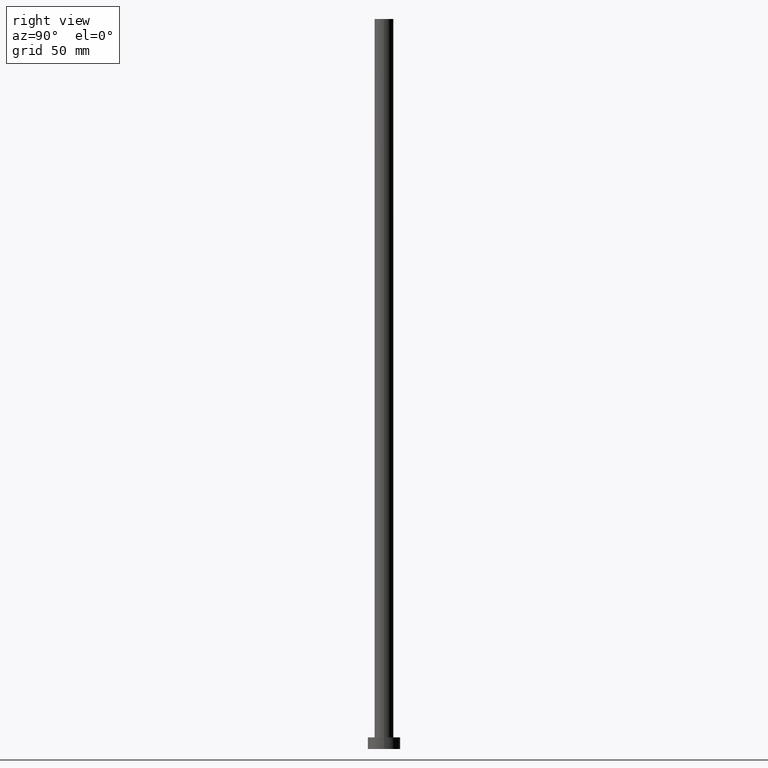
[diagram: clean part render]
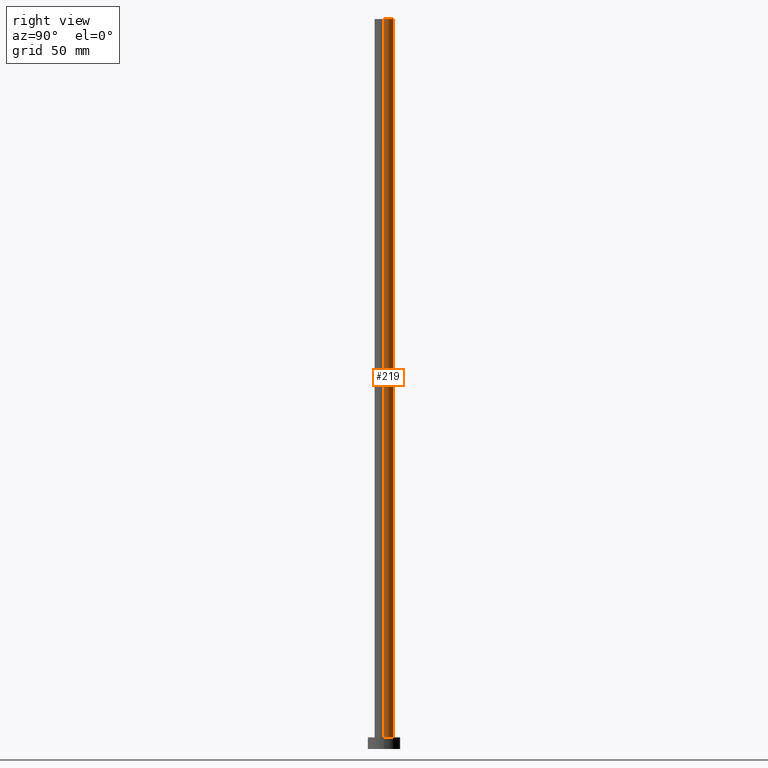
[diagram: same view with one face highlighted and labeled with its STEP entity id]
A machine part, right view. The second image highlights one B-rep face of the part: STEP entity #219.
In plain terms, the highlighted cylindrical surface (edge-blend (fillet) strip) has radius 4.1 mm, axis along (-0, -0, -1).
Its self-contained STEP definition (entity closure, byte-faithful):
#16 = DIRECTION ( 'NONE',  ( -0.000000000000000000, -0.000000000000000000, -1.000000000000000000 ) ) ;
#28 = VERTEX_POINT ( 'NONE', #132 ) ;
#32 = ORIENTED_EDGE ( 'NONE', *, *, #172, .T. ) ;
#33 = DIRECTION ( 'NONE',  ( -0.000000000000000000, -0.000000000000000000, -1.000000000000000000 ) ) ;
#38 = EDGE_CURVE ( 'NONE', #114, #189, #61, .T. ) ;
#43 = VECTOR ( 'NONE', #16, 1000.000000000000000 ) ;
#52 = AXIS2_PLACEMENT_3D ( 'NONE', #89, #248, #72 ) ;
#61 = CIRCLE ( 'NONE', #88, 4.099999999999999645 ) ;
#62 = AXIS2_PLACEMENT_3D ( 'NONE', #66, #147, #214 ) ;
#65 = CYLINDRICAL_SURFACE ( 'NONE', #62, 4.099999999999999645 ) ;
#66 = CARTESIAN_POINT ( 'NONE',  ( 0.000000000000000000, 0.000000000000000000, 315.0000000000000000 ) ) ;
#69 = DIRECTION ( 'NONE',  ( 0.000000000000000000, 0.000000000000000000, 1.000000000000000000 ) ) ;
#72 = DIRECTION ( 'NONE',  ( 1.000000000000000000, 0.000000000000000000, 0.000000000000000000 ) ) ;
#85 = CARTESIAN_POINT ( 'NONE',  ( -4.099999999999999645, 0.000000000000000000, 5.000000000000000000 ) ) ;
#88 = AXIS2_PLACEMENT_3D ( 'NONE', #192, #69, #186 ) ;
#89 = CARTESIAN_POINT ( 'NONE',  ( 0.000000000000000000, 0.000000000000000000, 315.0000000000000000 ) ) ;
#102 = CARTESIAN_POINT ( 'NONE',  ( 4.099999999999999645, 5.021051876504147385E-16, 5.000000000000000000 ) ) ;
#114 = VERTEX_POINT ( 'NONE', #102 ) ;
#115 = LINE ( 'NONE', #196, #245 ) ;
#118 = CARTESIAN_POINT ( 'NONE',  ( 4.099999999999999645, 5.021051876504147385E-16, 315.0000000000000000 ) ) ;
#132 = CARTESIAN_POINT ( 'NONE',  ( 4.099999999999999645, 5.021051876504147385E-16, 315.0000000000000000 ) ) ;
#139 = EDGE_CURVE ( 'NONE', #28, #175, #143, .T. ) ;
#143 = CIRCLE ( 'NONE', #52, 4.099999999999999645 ) ;
#147 = DIRECTION ( 'NONE',  ( -0.000000000000000000, -0.000000000000000000, -1.000000000000000000 ) ) ;
#171 = CARTESIAN_POINT ( 'NONE',  ( -4.099999999999999645, 0.000000000000000000, 315.0000000000000000 ) ) ;
#172 = EDGE_CURVE ( 'NONE', #28, #114, #224, .T. ) ;
#174 = EDGE_CURVE ( 'NONE', #175, #189, #115, .T. ) ;
#175 = VERTEX_POINT ( 'NONE', #171 ) ;
#186 = DIRECTION ( 'NONE',  ( 1.000000000000000000, 0.000000000000000000, 0.000000000000000000 ) ) ;
#189 = VERTEX_POINT ( 'NONE', #85 ) ;
#192 = CARTESIAN_POINT ( 'NONE',  ( 0.000000000000000000, 0.000000000000000000, 5.000000000000000000 ) ) ;
#196 = CARTESIAN_POINT ( 'NONE',  ( -4.099999999999999645, 0.000000000000000000, 315.0000000000000000 ) ) ;
#203 = ORIENTED_EDGE ( 'NONE', *, *, #38, .T. ) ;
#214 = DIRECTION ( 'NONE',  ( -1.000000000000000000, 0.000000000000000000, 0.000000000000000000 ) ) ;
#219 = ADVANCED_FACE ( 'NONE', ( #238 ), #65, .T. ) ;
#224 = LINE ( 'NONE', #118, #43 ) ;
#225 = ORIENTED_EDGE ( 'NONE', *, *, #139, .F. ) ;
#238 = FACE_OUTER_BOUND ( 'NONE', #243, .T. ) ;
#243 = EDGE_LOOP ( 'NONE', ( #225, #32, #203, #251 ) ) ;
#245 = VECTOR ( 'NONE', #33, 1000.000000000000000 ) ;
#248 = DIRECTION ( 'NONE',  ( 0.000000000000000000, 0.000000000000000000, 1.000000000000000000 ) ) ;
#251 = ORIENTED_EDGE ( 'NONE', *, *, #174, .F. ) ;